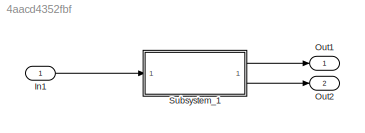
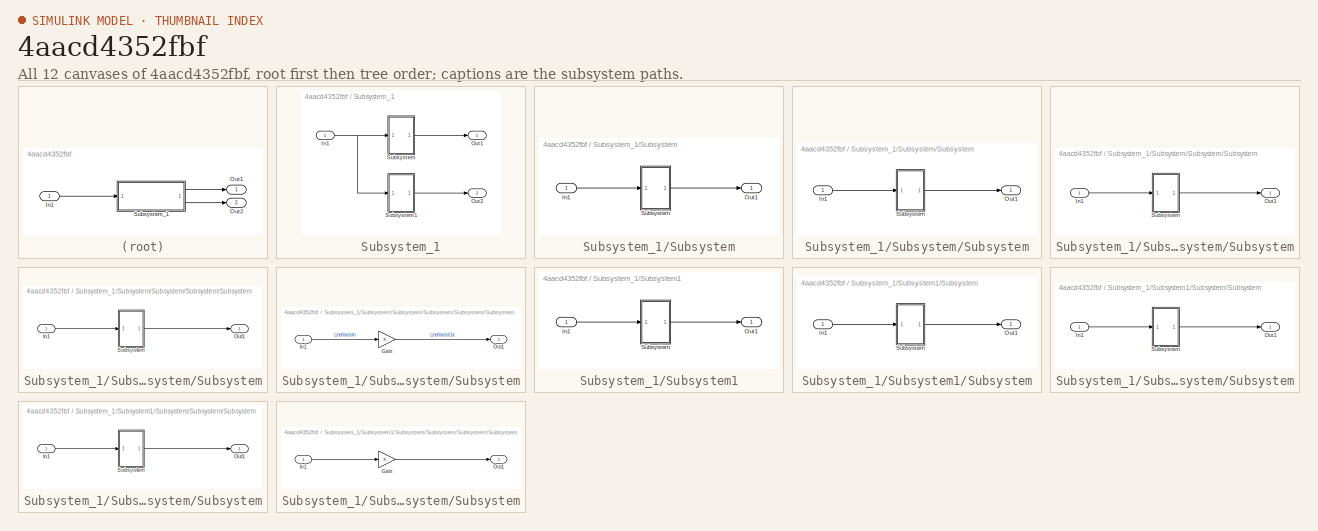
[diagram: thumbnail index - all 12 canvases of the model, root first then tree order]
MODEL mdl_4aacd4352fbf
KIND model
CONFIG AbsTol = auto
CONFIG EnableMultiTasking = off
CONFIG FixedStep = auto
CONFIG MaxStep = auto
CONFIG MinStep = auto
CONFIG RelTol = 1e-3
CONFIG SampleTimeConstraint = Unconstrained
CONFIG SolverName = VariableStepAuto
CONFIG StartTime = 0.0
CONFIG StopTime = 10.0
BLOCK [Inport] In1
BLOCK [Outport] Out1
BLOCK [Outport] Out2
  Port = 2
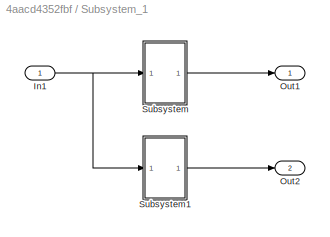
BLOCK [SubSystem] Subsystem_1
BLOCK [Inport] Subsystem_1/In1
BLOCK [Outport] Subsystem_1/Out1
BLOCK [Outport] Subsystem_1/Out2
  Port = 2
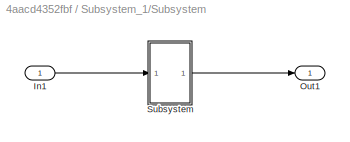
BLOCK [SubSystem] Subsystem_1/Subsystem
BLOCK [Inport] Subsystem_1/Subsystem/In1
BLOCK [Outport] Subsystem_1/Subsystem/Out1
BLOCK [SubSystem] Subsystem_1/Subsystem/Subsystem
BLOCK [Inport] Subsystem_1/Subsystem/Subsystem/In1
BLOCK [Outport] Subsystem_1/Subsystem/Subsystem/Out1
BLOCK [SubSystem] Subsystem_1/Subsystem/Subsystem/Subsystem
BLOCK [Inport] Subsystem_1/Subsystem/Subsystem/Subsystem/In1
BLOCK [Outport] Subsystem_1/Subsystem/Subsystem/Subsystem/Out1
BLOCK [SubSystem] Subsystem_1/Subsystem/Subsystem/Subsystem/Subsystem
BLOCK [Inport] Subsystem_1/Subsystem/Subsystem/Subsystem/Subsystem/In1
BLOCK [Outport] Subsystem_1/Subsystem/Subsystem/Subsystem/Subsystem/Out1
BLOCK [SubSystem] Subsystem_1/Subsystem/Subsystem/Subsystem/Subsystem/Subsystem
BLOCK [Gain] Subsystem_1/Subsystem/Subsystem/Subsystem/Subsystem/Subsystem/Gain
BLOCK [Inport] Subsystem_1/Subsystem/Subsystem/Subsystem/Subsystem/Subsystem/In1
BLOCK [Outport] Subsystem_1/Subsystem/Subsystem/Subsystem/Subsystem/Subsystem/Out1
BLOCK [SubSystem] Subsystem_1/Subsystem1
BLOCK [Inport] Subsystem_1/Subsystem1/In1
BLOCK [Outport] Subsystem_1/Subsystem1/Out1
BLOCK [SubSystem] Subsystem_1/Subsystem1/Subsystem
BLOCK [Inport] Subsystem_1/Subsystem1/Subsystem/In1
BLOCK [Outport] Subsystem_1/Subsystem1/Subsystem/Out1
BLOCK [SubSystem] Subsystem_1/Subsystem1/Subsystem/Subsystem
BLOCK [Inport] Subsystem_1/Subsystem1/Subsystem/Subsystem/In1
BLOCK [Outport] Subsystem_1/Subsystem1/Subsystem/Subsystem/Out1
BLOCK [SubSystem] Subsystem_1/Subsystem1/Subsystem/Subsystem/Subsystem
BLOCK [Inport] Subsystem_1/Subsystem1/Subsystem/Subsystem/Subsystem/In1
BLOCK [Outport] Subsystem_1/Subsystem1/Subsystem/Subsystem/Subsystem/Out1
BLOCK [SubSystem] Subsystem_1/Subsystem1/Subsystem/Subsystem/Subsystem/Subsystem
BLOCK [Gain] Subsystem_1/Subsystem1/Subsystem/Subsystem/Subsystem/Subsystem/Gain
BLOCK [Inport] Subsystem_1/Subsystem1/Subsystem/Subsystem/Subsystem/Subsystem/In1
BLOCK [Outport] Subsystem_1/Subsystem1/Subsystem/Subsystem/Subsystem/Subsystem/Out1
LINE In1:1 -> Subsystem_1:1
NET Subsystem_1/In1:1 -> Subsystem_1/Subsystem1:1, Subsystem_1/Subsystem:1
LINE Subsystem_1/Subsystem/In1:1 -> Subsystem_1/Subsystem/Subsystem:1
LINE Subsystem_1/Subsystem/Subsystem/In1:1 -> Subsystem_1/Subsystem/Subsystem/Subsystem:1
LINE Subsystem_1/Subsystem/Subsystem/Subsystem/In1:1 -> Subsystem_1/Subsystem/Subsystem/Subsystem/Subsystem:1
LINE Subsystem_1/Subsystem/Subsystem/Subsystem/Subsystem/In1:1 -> Subsystem_1/Subsystem/Subsystem/Subsystem/Subsystem/Subsystem:1
LINE Subsystem_1/Subsystem/Subsystem/Subsystem/Subsystem/Subsystem/Gain:1 -> Subsystem_1/Subsystem/Subsystem/Subsystem/Subsystem/Subsystem/Out1:1
LINE Subsystem_1/Subsystem/Subsystem/Subsystem/Subsystem/Subsystem/In1:1 -> Subsystem_1/Subsystem/Subsystem/Subsystem/Subsystem/Subsystem/Gain:1
LINE Subsystem_1/Subsystem/Subsystem/Subsystem/Subsystem/Subsystem:1 -> Subsystem_1/Subsystem/Subsystem/Subsystem/Subsystem/Out1:1
LINE Subsystem_1/Subsystem/Subsystem/Subsystem/Subsystem:1 -> Subsystem_1/Subsystem/Subsystem/Subsystem/Out1:1
LINE Subsystem_1/Subsystem/Subsystem/Subsystem:1 -> Subsystem_1/Subsystem/Subsystem/Out1:1
LINE Subsystem_1/Subsystem/Subsystem:1 -> Subsystem_1/Subsystem/Out1:1
LINE Subsystem_1/Subsystem1/In1:1 -> Subsystem_1/Subsystem1/Subsystem:1
LINE Subsystem_1/Subsystem1/Subsystem/In1:1 -> Subsystem_1/Subsystem1/Subsystem/Subsystem:1
LINE Subsystem_1/Subsystem1/Subsystem/Subsystem/In1:1 -> Subsystem_1/Subsystem1/Subsystem/Subsystem/Subsystem:1
LINE Subsystem_1/Subsystem1/Subsystem/Subsystem/Subsystem/In1:1 -> Subsystem_1/Subsystem1/Subsystem/Subsystem/Subsystem/Subsystem:1
LINE Subsystem_1/Subsystem1/Subsystem/Subsystem/Subsystem/Subsystem/Gain:1 -> Subsystem_1/Subsystem1/Subsystem/Subsystem/Subsystem/Subsystem/Out1:1
LINE Subsystem_1/Subsystem1/Subsystem/Subsystem/Subsystem/Subsystem/In1:1 -> Subsystem_1/Subsystem1/Subsystem/Subsystem/Subsystem/Subsystem/Gain:1
LINE Subsystem_1/Subsystem1/Subsystem/Subsystem/Subsystem/Subsystem:1 -> Subsystem_1/Subsystem1/Subsystem/Subsystem/Subsystem/Out1:1
LINE Subsystem_1/Subsystem1/Subsystem/Subsystem/Subsystem:1 -> Subsystem_1/Subsystem1/Subsystem/Subsystem/Out1:1
LINE Subsystem_1/Subsystem1/Subsystem/Subsystem:1 -> Subsystem_1/Subsystem1/Subsystem/Out1:1
LINE Subsystem_1/Subsystem1/Subsystem:1 -> Subsystem_1/Subsystem1/Out1:1
LINE Subsystem_1/Subsystem1:1 -> Subsystem_1/Out2:1
LINE Subsystem_1/Subsystem:1 -> Subsystem_1/Out1:1
LINE Subsystem_1:1 -> Out1:1
LINE Subsystem_1:2 -> Out2:1
note: NET lines group one-source signal fan-out (src -> all destinations, sorted); 1:1 wires keep LINE
